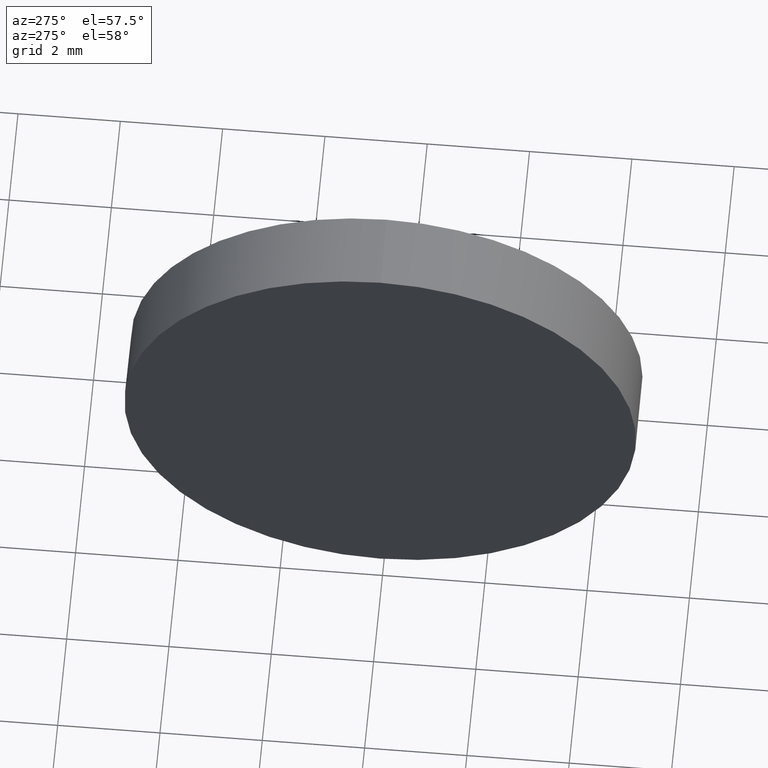
[diagram: clean part render]
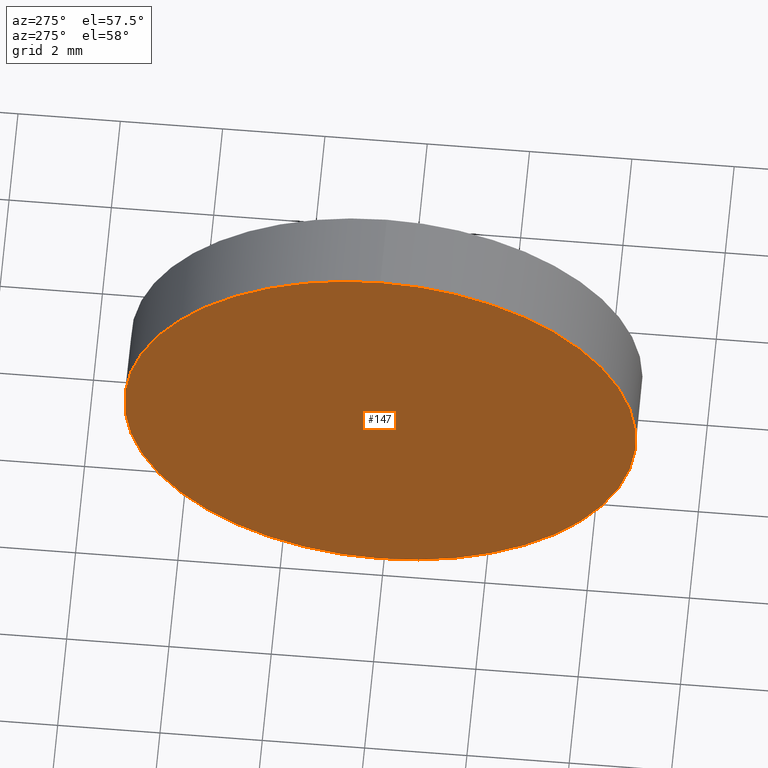
[diagram: same view with one face highlighted and labeled with its STEP entity id]
A machine part, auxiliary view. The second image highlights one B-rep face of the part: STEP entity #147.
In plain terms, the highlighted planar face has unit normal (1, 0, 0).
Its self-contained STEP definition (entity closure, byte-faithful):
#9 = ORIENTED_EDGE ( 'NONE', *, *, #74, .T. ) ;
#17 = PLANE ( 'NONE',  #85 ) ;
#22 = CIRCLE ( 'NONE', #131, 5.000000000000004400 ) ;
#27 = DIRECTION ( 'NONE',  ( 0.0000000000000000000, 0.0000000000000000000, 1.000000000000000000 ) ) ;
#40 = AXIS2_PLACEMENT_3D ( 'NONE', #138, #139, #170 ) ;
#42 = VERTEX_POINT ( 'NONE', #168 ) ;
#47 = CIRCLE ( 'NONE', #40, 5.000000000000004400 ) ;
#63 = EDGE_CURVE ( 'NONE', #154, #42, #22, .T. ) ;
#74 = EDGE_CURVE ( 'NONE', #42, #154, #47, .T. ) ;
#85 = AXIS2_PLACEMENT_3D ( 'NONE', #142, #185, #158 ) ;
#89 = EDGE_LOOP ( 'NONE', ( #176, #9 ) ) ;
#109 = DIRECTION ( 'NONE',  ( -1.000000000000000000, -0.0000000000000000000, -0.0000000000000000000 ) ) ;
#116 = CARTESIAN_POINT ( 'NONE',  ( 862.2463241507551900, 272.0667611182083200, 5.000000000000004400 ) ) ;
#131 = AXIS2_PLACEMENT_3D ( 'NONE', #180, #109, #27 ) ;
#138 = CARTESIAN_POINT ( 'NONE',  ( 862.2463241507551900, 272.0667611182083200, 0.0000000000000000000 ) ) ;
#139 = DIRECTION ( 'NONE',  ( -1.000000000000000000, -0.0000000000000000000, -0.0000000000000000000 ) ) ;
#142 = CARTESIAN_POINT ( 'NONE',  ( 862.2463241507551900, 272.0667611182083200, 0.0000000000000000000 ) ) ;
#147 = ADVANCED_FACE ( 'NONE', ( #184 ), #17, .F. ) ;
#154 = VERTEX_POINT ( 'NONE', #116 ) ;
#158 = DIRECTION ( 'NONE',  ( 0.0000000000000000000, 0.0000000000000000000, -1.000000000000000000 ) ) ;
#168 = CARTESIAN_POINT ( 'NONE',  ( 862.2463241507551900, 272.0667611182083200, -5.000000000000004400 ) ) ;
#170 = DIRECTION ( 'NONE',  ( 0.0000000000000000000, 0.0000000000000000000, 1.000000000000000000 ) ) ;
#176 = ORIENTED_EDGE ( 'NONE', *, *, #63, .T. ) ;
#180 = CARTESIAN_POINT ( 'NONE',  ( 862.2463241507551900, 272.0667611182083200, 0.0000000000000000000 ) ) ;
#184 = FACE_OUTER_BOUND ( 'NONE', #89, .T. ) ;
#185 = DIRECTION ( 'NONE',  ( 1.000000000000000000, 0.0000000000000000000, 0.0000000000000000000 ) ) ;